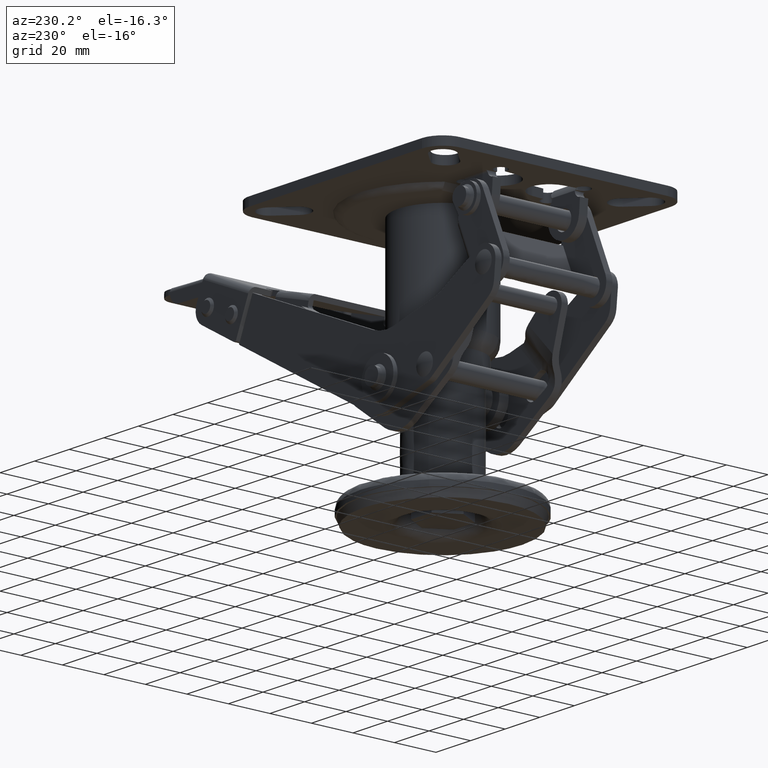
[diagram: clean part render]
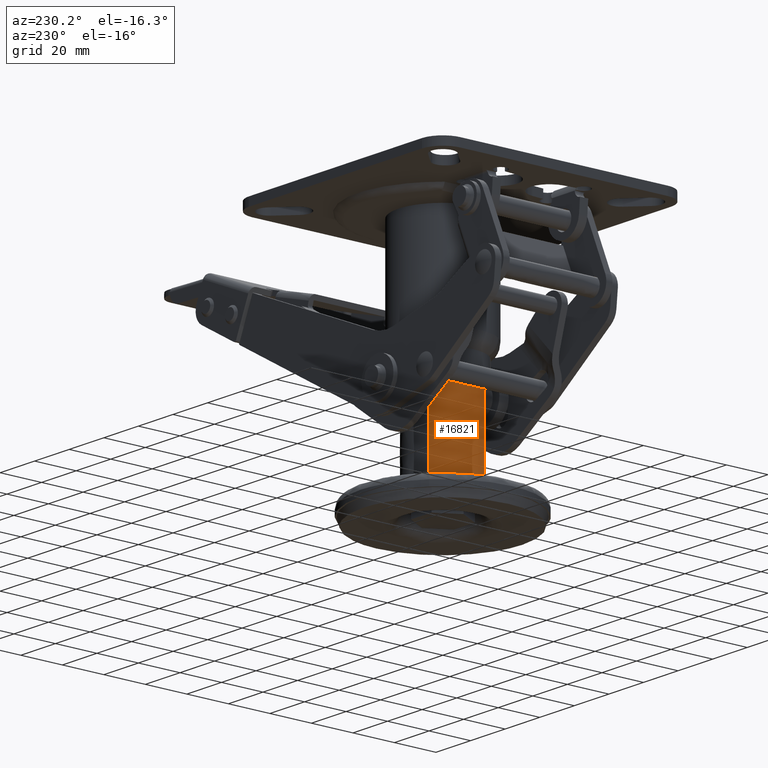
[diagram: same view with one face highlighted and labeled with its STEP entity id]
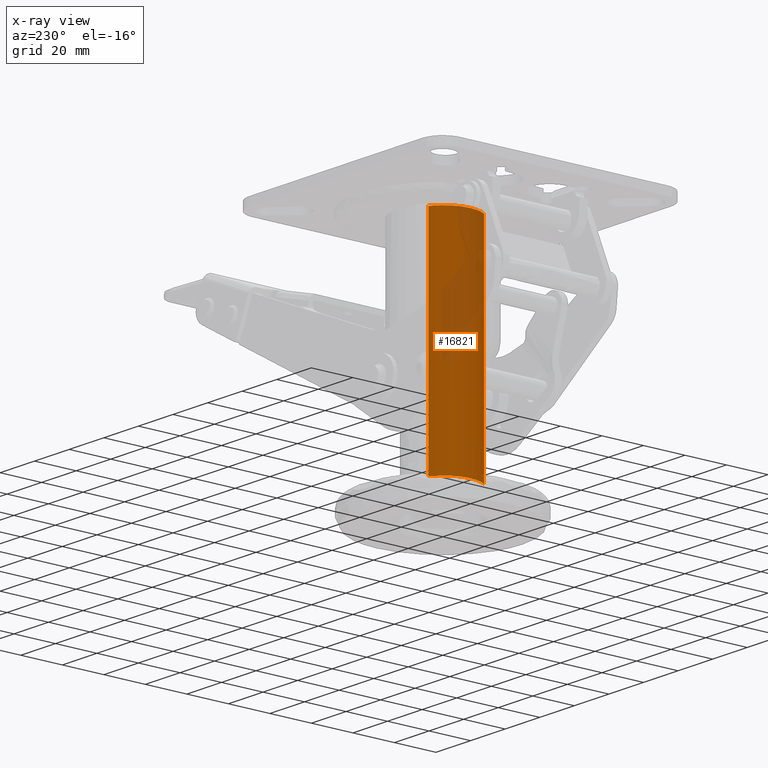
[diagram: x-ray of the same camera — body ghosted, the highlighted face saturated]
A machine part, auxiliary view. The second image highlights one B-rep face of the part: STEP entity #16821.
The next image is the same camera in x-ray: the body ghosted, the highlighted face saturated — about 29% of this face is hidden behind the body in this view.
In plain terms, the highlighted face is a freeform B-spline surface patch.
Its self-contained STEP definition (entity closure, byte-faithful):
#16305=CARTESIAN_POINT('',(-8.031873779802947,13.722200495296979,-5.849999999998623));
#16306=VERTEX_POINT('',#16305);
#16348=CARTESIAN_POINT('',(-13.240379756835710,-8.803532300424090,-5.850000000000003));
#16349=VERTEX_POINT('',#16348);
#16361=CARTESIAN_POINT('',(-13.240379039755901,-8.803531796015456,-110.099998000329800));
#16362=VERTEX_POINT('',#16361);
#16363=CARTESIAN_POINT('',(-13.240379756835710,-8.803532300424090,-5.850000000000003));
#16364=CARTESIAN_POINT('',(-13.240379039755901,-8.803531796015456,-110.099998000329800));
#16365=QUASI_UNIFORM_CURVE('',1,(#16363,#16364),.UNSPECIFIED.,.F.,.U.);
#16366=EDGE_CURVE('',#16349,#16362,#16365,.T.);
#16413=CARTESIAN_POINT('',(-8.031874618588946,13.722201924746280,-110.099998000201400));
#16414=VERTEX_POINT('',#16413);
#16423=CARTESIAN_POINT('',(-8.031873779802947,13.722200495296979,-5.849999999998623));
#16424=CARTESIAN_POINT('',(-8.031874618588946,13.722201924746280,-110.099998000201400));
#16425=QUASI_UNIFORM_CURVE('',1,(#16423,#16424),.UNSPECIFIED.,.F.,.U.);
#16426=EDGE_CURVE('',#16306,#16414,#16425,.T.);
#16755=CARTESIAN_POINT('',(-13.240379102347140,-8.803531701889048,-3.243750049984315));
#16756=CARTESIAN_POINT('',(-22.043910804236159,4.436847400458090,-3.243750049984315));
#16757=CARTESIAN_POINT('',(-8.803531701889025,13.240379102347120,-3.243750049984315));
#16758=CARTESIAN_POINT('',(-8.424597740431450,13.492332397402146,-3.243750049984315));
#16759=CARTESIAN_POINT('',(-8.031874237905448,13.722201187364442,-3.243750049984315));
#16760=CARTESIAN_POINT('',(-13.240379102347140,-8.803531701889048,-112.771404199393400));
#16761=CARTESIAN_POINT('',(-22.043910804236159,4.436847400458090,-112.771404199393400));
#16762=CARTESIAN_POINT('',(-8.803531701889025,13.240379102347120,-112.771404199393400));
#16763=CARTESIAN_POINT('',(-8.424597740431450,13.492332397402146,-112.771404199393430));
#16764=CARTESIAN_POINT('',(-8.031874237905448,13.722201187364442,-112.771404199393430));
#16772=(BOUNDED_SURFACE()B_SPLINE_SURFACE(2,1,((#16755,#16760),(#16756,#16761),(#16757,#16762),(#16758,#16763),(#16759,#16764)),.UNSPECIFIED.,.F.,.F.,.U.)B_SPLINE_SURFACE_WITH_KNOTS((3,2,3),(2,2),(0.0,26.343972625803339,27.397731530835468),(0.0,109.527654149409100),.UNSPECIFIED.)GEOMETRIC_REPRESENTATION_ITEM()RATIONAL_B_SPLINE_SURFACE(((1.0,1.0),(0.707106781186548,0.707106781186548),(1.0,1.0),(0.988284271247462,0.988284271247462),(0.977505800795127,0.977505800795127)))REPRESENTATION_ITEM('')SURFACE());
#16773=CARTESIAN_POINT('',(-15.899994000000000,-2.340590E-014,-5.850000000000001));
#16774=VERTEX_POINT('',#16773);
#16775=CARTESIAN_POINT('',(-15.899994000000000,-2.340590E-014,-5.850000000000001));
#16776=CARTESIAN_POINT('',(-15.900088662757121,0.991616834791692,-5.849999999999888));
#16777=CARTESIAN_POINT('',(-15.701777517241659,3.104182920905775,-5.849999999999707));
#16778=CARTESIAN_POINT('',(-14.850797962061650,5.926811908072331,-5.849999999999400));
#16779=CARTESIAN_POINT('',(-13.365051851363480,8.809808864192952,-5.849999999999120));
#16780=CARTESIAN_POINT('',(-11.220289945064650,11.488263850470080,-5.849999999998852));
#16781=CARTESIAN_POINT('',(-9.148298357557936,13.069075329479890,-5.849999999998688));
#16782=CARTESIAN_POINT('',(-8.031873779802947,13.722200495296979,-5.849999999998623));
#16783=B_SPLINE_CURVE_WITH_KNOTS('',3,(#16775,#16776,#16777,#16778,#16779,#16780,#16781,#16782),.UNSPECIFIED.,.F.,.U.,(4,1,1,1,1,4),(0.000000082867981,2.974853166584877,6.337757733379879,8.795228713464748,12.675514755753291,16.555772945476111),.UNSPECIFIED.);
#16784=EDGE_CURVE('',#16774,#16306,#16783,.T.);
#16785=ORIENTED_EDGE('',*,*,#16784,.T.);
#16786=ORIENTED_EDGE('',*,*,#16426,.T.);
#16787=CARTESIAN_POINT('',(-15.899994000000000,-2.320935E-014,-110.099998000627290));
#16788=VERTEX_POINT('',#16787);
#16789=CARTESIAN_POINT('',(-8.031874618588946,13.722201924746280,-110.099998000201400));
#16790=CARTESIAN_POINT('',(-8.738841786890001,13.308421121543169,-110.099998000223590));
#16791=CARTESIAN_POINT('',(-10.266349960470050,12.248082244977271,-110.099998000274400));
#16792=CARTESIAN_POINT('',(-12.172458517707650,10.355902372443870,-110.099998000349800));
#16793=CARTESIAN_POINT('',(-13.592800654228251,8.341437873815996,-110.099998000416800));
#16794=CARTESIAN_POINT('',(-14.609691295016111,6.387892040475586,-110.099998000475790));
#16795=CARTESIAN_POINT('',(-15.587651871276060,3.707552653933097,-110.099998000549500));
#16796=CARTESIAN_POINT('',(-15.900566992691671,1.465945736748876,-110.099998000597400));
#16797=CARTESIAN_POINT('',(-15.899994000000000,-2.320935E-014,-110.099998000627290));
#16798=B_SPLINE_CURVE_WITH_KNOTS('',3,(#16789,#16790,#16791,#16792,#16793,#16794,#16795,#16796,#16797),.UNSPECIFIED.,.F.,.U.,(4,1,1,1,1,1,4),(0.000000082868972,2.457487030919241,5.561717696163617,8.019218038526883,9.829954024686817,12.158145336228509,16.555773806527320),.UNSPECIFIED.);
#16799=EDGE_CURVE('',#16414,#16788,#16798,.T.);
#16800=ORIENTED_EDGE('',*,*,#16799,.T.);
#16801=CARTESIAN_POINT('',(-15.899994000000000,-2.320935E-014,-110.099998000627290));
#16802=CARTESIAN_POINT('',(-15.900528522966860,-1.457839556757651,-110.099998000543590));
#16803=CARTESIAN_POINT('',(-15.469061375714370,-4.567418553436794,-110.099998000400700));
#16804=CARTESIAN_POINT('',(-14.156015461790460,-7.428180145068954,-110.099998000337290));
#16805=CARTESIAN_POINT('',(-13.240379039755901,-8.803531796015456,-110.099998000329800));
#16806=B_SPLINE_CURVE_WITH_KNOTS('',3,(#16801,#16802,#16803,#16804,#16805),.UNSPECIFIED.,.F.,.U.,(4,1,4),(0.000000026118183,4.373369225132203,9.329810910632343),.UNSPECIFIED.);
#16807=EDGE_CURVE('',#16788,#16362,#16806,.T.);
#16808=ORIENTED_EDGE('',*,*,#16807,.T.);
#16809=ORIENTED_EDGE('',*,*,#16366,.F.);
#16810=CARTESIAN_POINT('',(-13.240379756835710,-8.803532300424090,-5.850000000000003));
#16811=CARTESIAN_POINT('',(-13.778507906797280,-7.994271903797662,-5.850000000000011));
#16812=CARTESIAN_POINT('',(-14.821924060529620,-6.062080224321344,-5.850000000000001));
#16813=CARTESIAN_POINT('',(-15.713438019892619,-3.061365303490387,-5.850000000000004));
#16814=CARTESIAN_POINT('',(-15.900026751255099,-0.923252558041249,-5.850000000000002));
#16815=CARTESIAN_POINT('',(-15.899994000000000,-2.340590E-014,-5.850000000000001));
#16816=B_SPLINE_CURVE_WITH_KNOTS('',3,(#16810,#16811,#16812,#16813,#16814,#16815),.UNSPECIFIED.,.F.,.U.,(4,1,1,4),(0.000000026112746,2.915573907128392,6.560021198129587,9.329811190766895),.UNSPECIFIED.);
#16817=EDGE_CURVE('',#16349,#16774,#16816,.T.);
#16818=ORIENTED_EDGE('',*,*,#16817,.T.);
#16819=EDGE_LOOP('',(#16785,#16786,#16800,#16808,#16809,#16818));
#16820=FACE_OUTER_BOUND('',#16819,.T.);
#16821=ADVANCED_FACE('',(#16820),#16772,.T.);